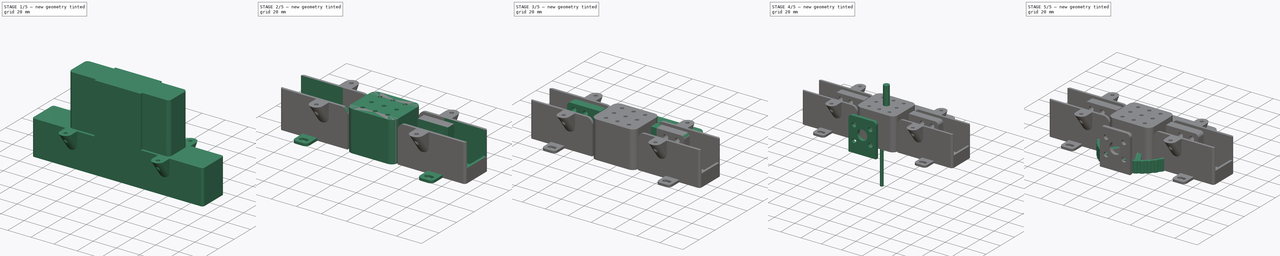
[diagram: build sequence overview — one tinted view per stage of 5, left to right]
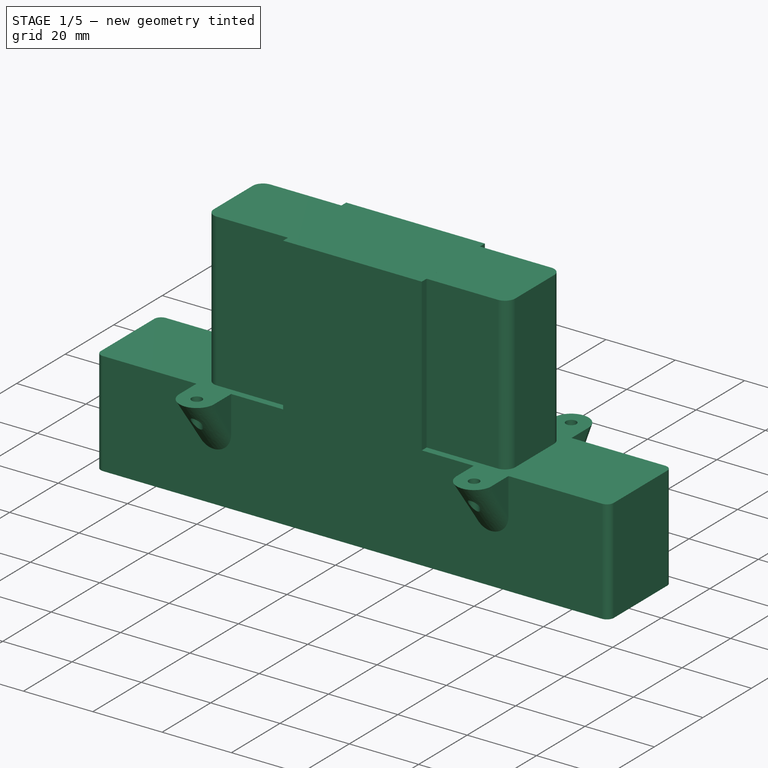
[diagram: stage 1 of 5 — iso view after this stage's code; geometry added in this stage tinted green]
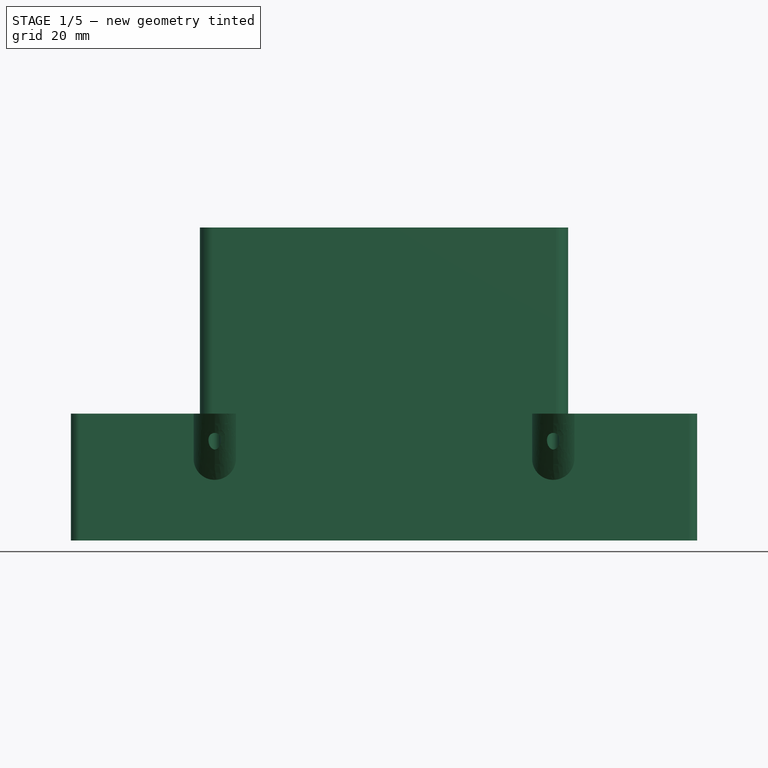
[diagram: stage 1 of 5 — front view after this stage's code; geometry added in this stage tinted green]
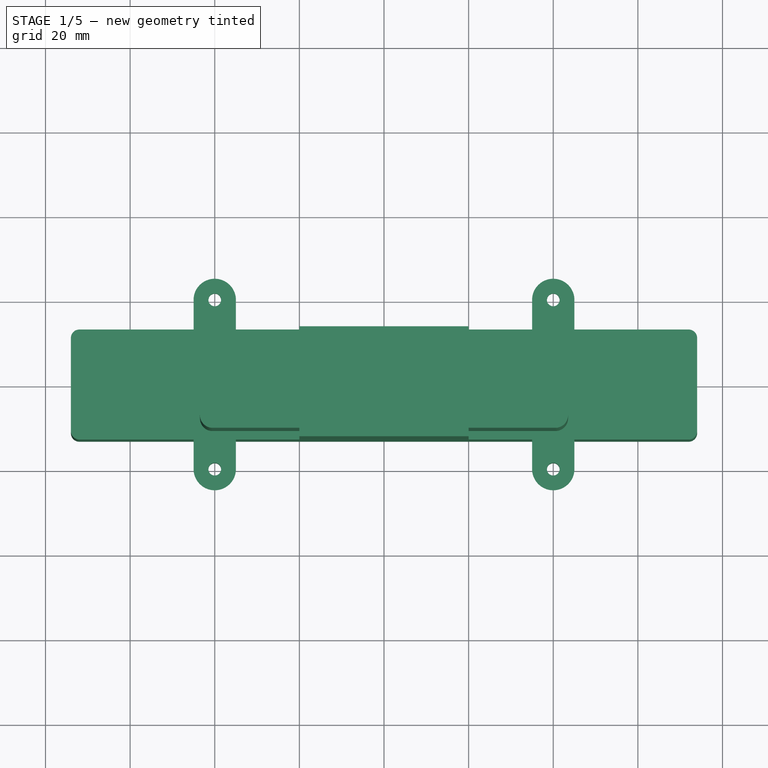
[diagram: stage 1 of 5 — top view after this stage's code; geometry added in this stage tinted green]
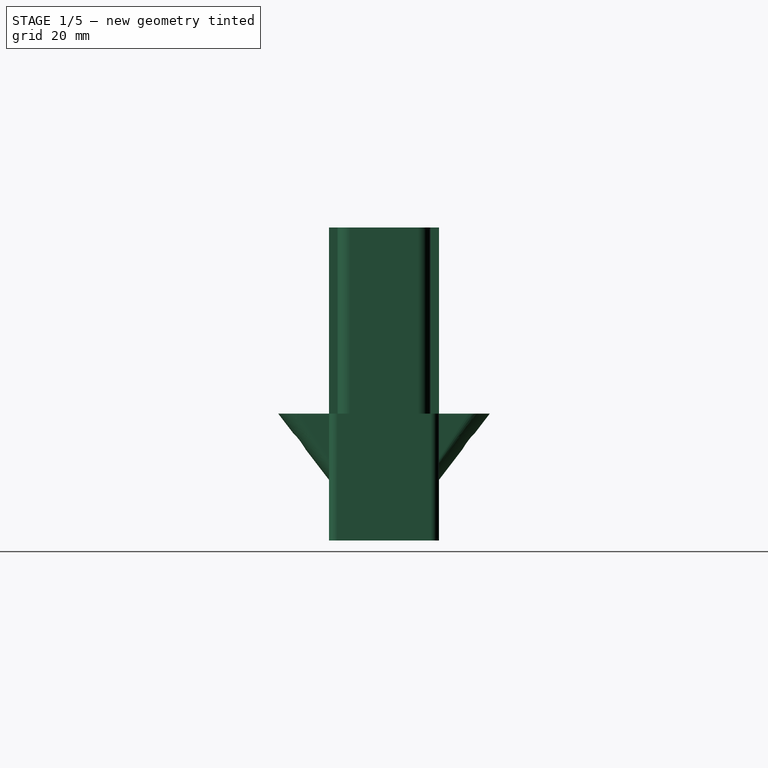
[diagram: stage 1 of 5 — right view after this stage's code; geometry added in this stage tinted green]
FCSTD DOCUMENT  (FreeCAD 0.20R29410 (Git))
Label: nema_wheel
License: All rights reserved
LicenseURL: http://en.wikipedia.org/wiki/All_rights_reserved
objects: Part::FeaturePython×16, Part::Cylinder×14, Part::MultiFuse×14, Part::Box×12, Part::Cut×9, Part::Fillet×8, Part::Mirroring×6, Surface::GeomFillSurface×5, Sketcher::SketchObject×4, Part::Feature×3, Part::Refine×2, PartDesign::Body×2, Part::Cone×1, Part::Extrusion×1, Part::Plane×1, App::DocumentObjectGroup×1, PartDesign::Pad×1, PartDesign::FeatureBase×1, Spreadsheet::Sheet×1, Part::Compound×1
note: 94 computed .brp shape members not serialized (recipe doc carries the construction recipe); baked Part::Feature solids carry a one-line shape summary decoded from their .brp

FEATURE [Part::Cylinder] Cylinder009  label="insert hole002"
  Angle = 360
  AttacherType = Attacher::AttachEngine3D
  FirstAngle = 0
  Height = 10
  Radius = 2.1
  SecondAngle = 0
  expr: Radius = <<p>>.insert_hole_r
FEATURE [Part::FeaturePython] Array002  label="insert hole 10x10 array"  # Draft array (typed FeaturePython)
  AlwaysSyncPlacement = false
  Angle = 360
  ArrayType = 0
  Axis = (0,0,1)
  Base = -> Cylinder009
  Center = (0,0,0)
  Count = 6
  ExpandArray = false
  Fuse = false
  IntervalAxis = (0,0,0)
  IntervalX = (10,0,0)
  IntervalY = (0,10,0)
  IntervalZ = (0,0,100)
  NumberCircles = 3
  NumberPolar = 5
  NumberX = 3
  NumberY = 2
  NumberZ = 1
  PlacementList = 6 placements: [(0,0,0),(0,10,0),(10,0,0),(10,10,0),(20,0,0),(20,10,0)]
  RadialDistance = 50
  ScaleList = (6) [(1,1,1),(1,1,1),(1,1,1),(1,1,1),(1,1,1),(1,1,1)]
  Symmetry = 1
  TangentialDistance = 25
FEATURE [PartDesign::FeatureBase] Clone
  BaseFeature = -> Array002
FEATURE [Part::Box] Box009  label="battery holder cube"
  AttacherType = Attacher::AttachEngine3D
  Height = 30
  Length = 148
  Placement = pos=(-74,-13,0) rot=(0,0,1;0rad)
  Width = 26
  expr: .Placement.Base.x = -Length / 2
  expr: .Placement.Base.y = -Width / 2
  expr: Length = <<p>>.battery_length + 2 * <<p>>.battery_holder_wall
  expr: Width = <<p>>.battery_width + 2 * <<p>>.battery_holder_wall
FEATURE [Part::Fillet] Fillet006  label="battery holder cube fillet"
  Base = -> Box009
  Edges = 4 edges r=2: [Edge1,Edge3,Edge5,Edge7]
FEATURE [Part::Cylinder] Cylinder012  label="bolt hole"
  Angle = 360
  AttacherType = Attacher::AttachEngine3D
  FirstAngle = 0
  Height = 10
  Radius = 1.85
  SecondAngle = 0
FEATURE [Part::FeaturePython] Array006  label="battery holder bolt hole array"  # Draft array (typed FeaturePython)
  AlwaysSyncPlacement = false
  Angle = 360
  ArrayType = 0
  Axis = (0,0,1)
  Base = -> Cylinder012
  Center = (0,0,0)
  Count = 13
  ExpandArray = false
  Fuse = false
  IntervalAxis = (0,0,0)
  IntervalX = (10,0,0)
  IntervalY = (0,100,0)
  IntervalZ = (0,0,100)
  NumberCircles = 3
  NumberPolar = 5
  NumberX = 13
  NumberY = 1
  NumberZ = 1
  Placement = pos=(-60,0,0) rot=(0,0,1;0rad)
  PlacementList = 13 placements: arithmetic series from (0,0,0) step (10,0,0) to (120,0,0)
  RadialDistance = 50
  ScaleList = (13) [(1,1,1),(1,1,1),(1,1,1),(1,1,1),(1,1,1),(1,1,1),(1,1,1),(1,1,1),(1,1,1),(1,1,1),(1,1,1),(1,1,1),(1,1,1)]
  Symmetry = 1
  TangentialDistance = 25
  expr: .Placement.Base.x = -.IntervalX.x * (NumberX - 1) / 2
FEATURE [Part::Box] Box012  label="battery short extract cube"
  AttacherType = Attacher::AttachEngine3D
  Height = 74
  Length = 87
  Placement = pos=(-43.5,-11,0) rot=(0,0,1;0rad)
  Width = 22
  expr: .Placement.Base.x = -Length / 2
  expr: .Placement.Base.y = -Width / 2
  expr: Height = <<p>>.battery_height
  expr: Width = <<p>>.battery_width
FEATURE [Part::Fillet] Fillet007  label="battery short extract cube fillet"
  Base = -> Box012
  Edges = 4 edges r=3: [Edge1,Edge3,Edge5,Edge7]
FEATURE [Sketcher::SketchObject] Sketch002
  FullyConstrained = true
  sketch-geometry (4):
    g0: LineSegment StartX=-5 StartY=-7 StartZ=0 EndX=-5 EndY=-9e-16 EndZ=0
    g1: LineSegment StartX=5 StartY=-7 StartZ=0 EndX=5 EndY=0 EndZ=0
    g2: ArcOfCircle CenterX=0 CenterY=0 CenterZ=0 NormalX=0 NormalY=0 NormalZ=1 AngleXU=0 Radius=5 StartAngle=0 EndAngle=3.14159
    g3: LineSegment StartX=-5 StartY=-7 StartZ=0 EndX=5 EndY=-7 EndZ=0
  constraints (9):
    c: Vertical(g1)
    c: Symmetric(g0,g1,g-2)
    c: Tangent(g2,g0) = 1.5708
    c: Tangent(g2,g1) = -1.5708
    c: Coincident(g3,g0)
    c: Coincident(g3,g1)
    c: Radius(g2) = 5
    c: DistanceY(g0,g0) = 7
    c: Coincident(g2,g-1)
FEATURE [Sketcher::SketchObject] Sketch003
  FullyConstrained = false
  Placement = pos=(0,-7,0) rot=(1,0,0;1.5708rad)
  sketch-geometry (4):
    g0: LineSegment StartX=-5 StartY=0 StartZ=0 EndX=-5 EndY=-10.6504 EndZ=0
    g1: LineSegment StartX=5 StartY=0 StartZ=0 EndX=5 EndY=-10.6504 EndZ=0
    g2: ArcOfCircle CenterX=2e-16 CenterY=-10.6504 CenterZ=0 NormalX=0 NormalY=0 NormalZ=1 AngleXU=0 Radius=5 StartAngle=3.14159 EndAngle=6.28319
    g3: LineSegment StartX=-5 StartY=0 StartZ=0 EndX=5 EndY=0 EndZ=0
  constraints (9):
    c: PointOnObject(g0,g-1)
    c: Vertical(g0)
    c: Vertical(g1)
    c: Tangent(g2,g0) = -1.5708
    c: Tangent(g2,g1) = 1.5708
    c: Symmetric(g0,g1,g-2)
    c: Radius(g2) = 5
    c: Coincident(g3,g0)
    c: Coincident(g3,g1)
FEATURE [Surface::GeomFillSurface] Surface
  BoundaryList = -> [Sketch002,Sketch003]
  FillType = 0
FEATURE [Surface::GeomFillSurface] Surface001
  BoundaryList = -> [Sketch003,Sketch002]
  FillType = 0
FEATURE [Surface::GeomFillSurface] Surface002
  BoundaryList = -> [Surface,Sketch002,Surface001,Sketch003]
  FillType = 0
FEATURE [Surface::GeomFillSurface] Surface003
  BoundaryList = -> [Surface,Surface001,Surface002]
  FillType = 0
FEATURE [Surface::GeomFillSurface] Surface004
  BoundaryList = -> [Sketch002]
  FillType = 0
FEATURE [Part::Cylinder] Cylinder013  label="bolt screw hole"
  Angle = 360
  AttacherType = Attacher::AttachEngine3D
  FirstAngle = 0
  Height = 20
  Placement = pos=(0,0,-20) rot=(0,0,1;0rad)
  Radius = 1.5
  SecondAngle = 0
  expr: .Placement.Base.z = -Height
FEATURE [Part::Compound] Compound
  Links = -> [Surface,Surface001,Surface002,Surface003,Surface004]
FEATURE [Part::Refine] Compound001
  Source = -> Compound
FEATURE [Part::Feature] Compound001_solid001  label="Compound001 (Solid)001"
  shape: bbox 10 x 12.95 x 16.61 mm, 5 faces (baked)
FEATURE [Part::Cut] Cut004006  label="ear cut"
  Base = -> Compound001_solid001
  Placement = pos=(-40,20,0) rot=(0,0,1;0rad)
  Tool = -> Cylinder013
FEATURE [Part::FeaturePython] Array007  label="ear array"  # Draft array (typed FeaturePython)
  AlwaysSyncPlacement = false
  Angle = 360
  ArrayType = 0
  Axis = (0,0,1)
  Base = -> Cut004006
  Center = (0,0,0)
  Count = 2
  ExpandArray = false
  Fuse = false
  IntervalAxis = (0,0,0)
  IntervalX = (80,0,0)
  IntervalY = (0,100,0)
  IntervalZ = (0,0,100)
  NumberCircles = 3
  NumberPolar = 5
  NumberX = 2
  NumberY = 1
  NumberZ = 1
  Placement = pos=(0,0,30) rot=(0,0,1;0rad)
  PlacementList = 2 placements: [(-40,20,0),(40,20,0)]
  RadialDistance = 50
  ScaleList = (2) [(1,1,1),(1,1,1)]
  Symmetry = 1
  TangentialDistance = 25
  expr: .Placement.Base.z = <<battery holder cube>>.Height
FEATURE [Part::Mirroring] Part__Mirroring004  label="ear array (Mirror #5)"
  Base = (0,0,0)
  Normal = (0,1,0)
  Source = -> Array007
FEATURE [Part::MultiFuse] Fusion013  label="battery holder fusion"
  Shapes = -> [Part__Mirroring004,Array007,Fillet006]
FEATURE [Part::Box] Box013  label="battery extract cut cube"
  AttacherType = Attacher::AttachEngine3D
  Height = 74
  Length = 40
  Placement = pos=(-20,-13,0) rot=(0,0,1;0rad)
  Width = 26
  expr: .Placement.Base.x = -Length / 2
  expr: .Placement.Base.y = -Width / 2
  expr: Height = <<p>>.battery_height
  expr: Width = <<p>>.battery_width + 2 * <<p>>.battery_holder_wall
FEATURE [Part::Mirroring] Part__Mirroring005  label="holdert hole clone (Mirror #6)"
  Base = (0,0,0)
  Normal = (1,0,0)
  Source = -> Body
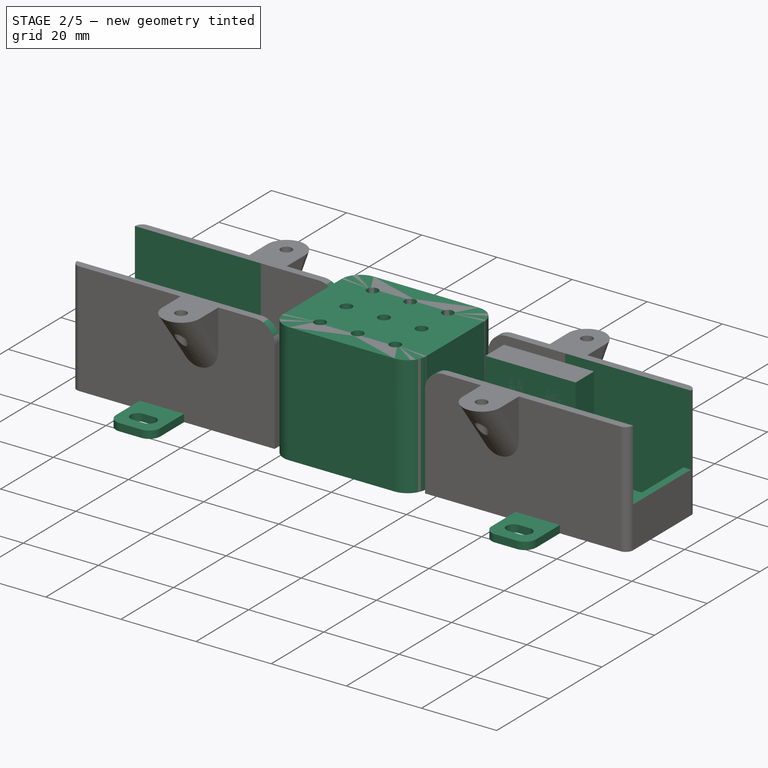
[diagram: stage 2 of 5 — iso view after this stage's code; geometry added in this stage tinted green]
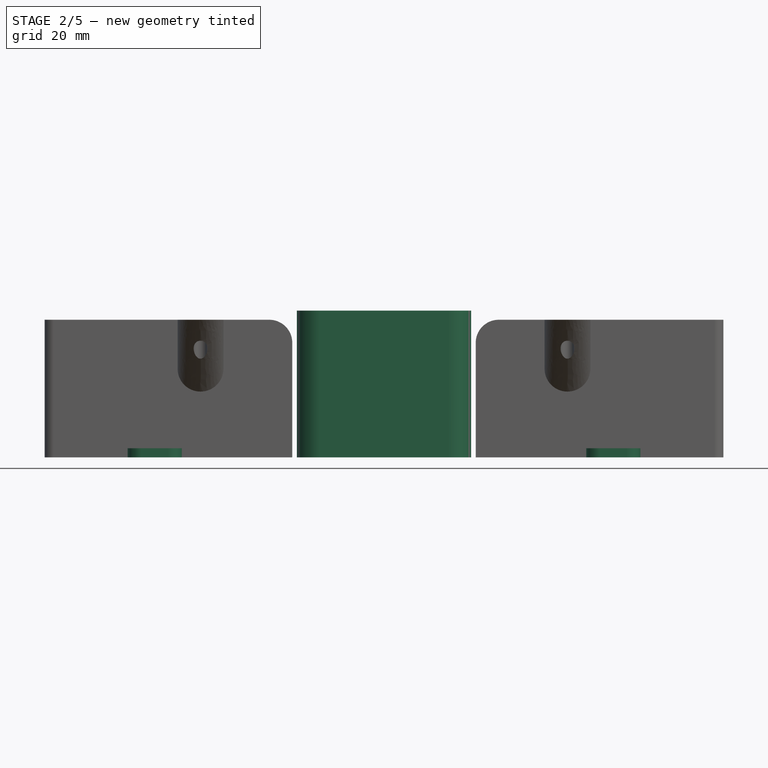
[diagram: stage 2 of 5 — front view after this stage's code; geometry added in this stage tinted green]
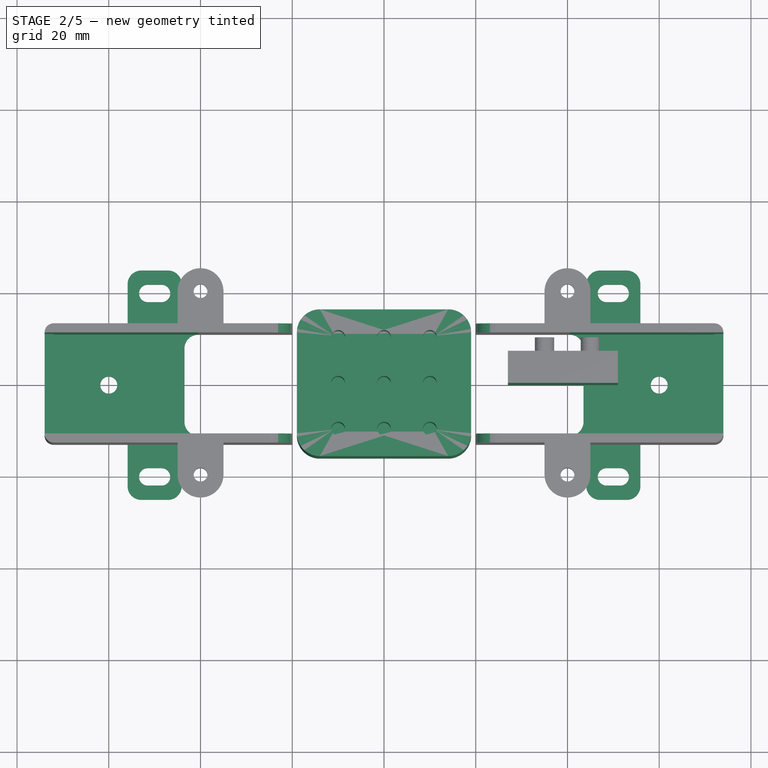
[diagram: stage 2 of 5 — top view after this stage's code; geometry added in this stage tinted green]
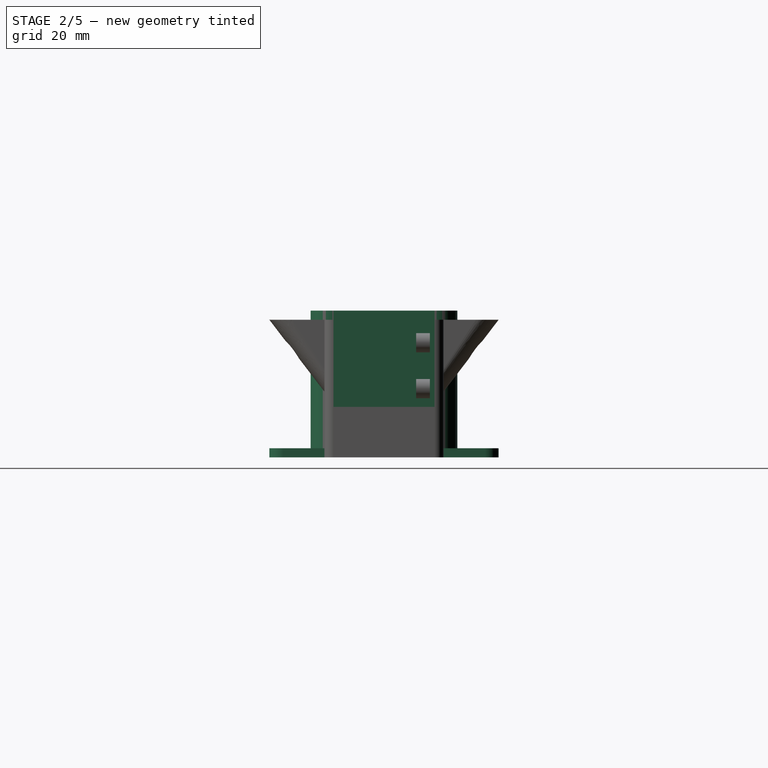
[diagram: stage 2 of 5 — right view after this stage's code; geometry added in this stage tinted green]
FEATURE [Part::Feature] Pocket003Body001  label="StepperBody"
  Placement = pos=(0,0,5) rot=(0,0,1;0rad)
  shape: bbox 46.6 x 42.3 x 53.35 mm, 70 faces (baked)
FEATURE [Part::Box] Box003  label="stepper wall"
  AttacherType = Attacher::AttachEngine3D
  Height = 5
  Length = 54
  Placement = pos=(-27,15,0) rot=(0,0,1;0rad)
  Width = 46
  expr: .Placement.Base.x = -Length / 2
FEATURE [App::DocumentObjectGroup] GrExplode_Slice  label="Exploded Slice"
  Group = -> [Slice_child0,Array]
FEATURE [Part::Box] Box004  label="stepper top wall"
  AttacherType = Attacher::AttachEngine3D
  Height = 30
  Length = 24
  Placement = pos=(27,0,0) rot=(0,0,1;0rad)
  Width = 7
  expr: .Placement.Base.x = <<stepper wall>>.Length / 2
FEATURE [Spreadsheet::Sheet] Spreadsheet  label="p"
  cells = A1=stepper_wall_width; B1(stepper_wall_width)==60mm; A2=insert_hole_r; B2(insert_hole_r)==2.1mm; A3=screw_hole_r; B3(screw_hole_r)==1.5mm; A4=battery_width; B4(battery_width)==22mm; A5=battery_height; B5(battery_height)==74mm; A6=battery_length; B6(battery_length)==144mm; A7=battery_holder_wall; B7(battery_holder_wall)==2mm
FEATURE [Part::Box] Box008  label="coaster holder cube"
  AttacherType = Attacher::AttachEngine3D
  Height = 32
  Length = 38
  Placement = pos=(-19,-16,0) rot=(0,0,1;0rad)
  Width = 32
  expr: .Placement.Base.x = -Length / 2
  expr: .Placement.Base.y = -Width / 2
FEATURE [Part::Cylinder] Cylinder010  label="coaster insert hole"
  Angle = 360
  AttacherType = Attacher::AttachEngine3D
  FirstAngle = 0
  Height = 16
  Radius = 2.1
  SecondAngle = 0
  expr: Height = <<coaster holder cube>>.Height / 2
  expr: Radius = <<p>>.insert_hole_r
FEATURE [Part::Fillet] Fillet005  label="coaster holder cube fillet"
  Base = -> Box008
  Edges = 4 edges r=5: [Edge1,Edge3,Edge5,Edge7]
FEATURE [Part::Cylinder] Cylinder011  label="coaster screw hole"
  Angle = 360
  AttacherType = Attacher::AttachEngine3D
  FirstAngle = 0
  Height = 27
  Radius = 1.5
  SecondAngle = 0
  expr: Height = <<coaster holder cube>>.Height - 5mm
  expr: Radius = <<p>>.screw_hole_r
FEATURE [Part::FeaturePython] Array003  label="coaster holder top hole array"  # Draft array (typed FeaturePython)
  AlwaysSyncPlacement = false
  Angle = 360
  ArrayType = 0
  Axis = (0,0,1)
  Base = -> Cylinder011
  Center = (0,0,0)
  Count = 9
  ExpandArray = false
  Fuse = false
  IntervalAxis = (0,0,0)
  IntervalX = (10,0,0)
  IntervalY = (0,10,0)
  IntervalZ = (0,0,100)
  NumberCircles = 3
  NumberPolar = 5
  NumberX = 3
  NumberY = 3
  NumberZ = 1
  Placement = pos=(-10,-10,16) rot=(0,0,1;0rad)
  PlacementList = 9 placements: [(0,0,0),(0,10,0),(0,20,0),(10,0,0),(10,10,0),(10,20,0),(20,0,0),(20,10,0),(20,20,0)]
  RadialDistance = 50
  ScaleList = (9) [(1,1,1),(1,1,1),(1,1,1),(1,1,1),(1,1,1),(1,1,1),(1,1,1),(1,1,1),(1,1,1)]
  Symmetry = 1
  TangentialDistance = 25
  expr: .Placement.Base.x = -.IntervalX.x * (NumberX - 1) / 2
  expr: .Placement.Base.y = -.IntervalY.y * (NumberY - 1) / 2
  expr: .Placement.Base.z = <<coaster holder cube>>.Height - <<coaster insert hole>>.Height
FEATURE [Part::FeaturePython] Array004  label="coaster holder bottom hole array"  # Draft array (typed FeaturePython)
  AlwaysSyncPlacement = false
  Angle = 360
  ArrayType = 0
  Axis = (0,0,1)
  Base = -> Cylinder011
  Center = (0,0,0)
  Count = 4
  ExpandArray = false
  Fuse = false
  IntervalAxis = (0,0,0)
  IntervalX = (30,0,0)
  IntervalY = (0,23.5,0)
  IntervalZ = (0,0,100)
  NumberCircles = 3
  NumberPolar = 5
  NumberX = 2
  NumberY = 2
  NumberZ = 1
  Placement = pos=(-15,-11.75,0) rot=(0,0,1;0rad)
  PlacementList = 4 placements: [(0,0,0),(0,23.5,0),(30,0,0),(30,23.5,0)]
  RadialDistance = 50
  ScaleList = (4) [(1,1,1),(1,1,1),(1,1,1),(1,1,1)]
  Symmetry = 1
  TangentialDistance = 25
  expr: .Placement.Base.x = -.IntervalX.x / 2
  expr: .Placement.Base.y = -.IntervalY.y / 2
FEATURE [Part::MultiFuse] Fusion011  label="coaster hole fusion"
  Shapes = -> [Array003,Array004]
FEATURE [Part::Cut] Cut004004  label="coaster holder cut"
  Base = -> Fillet005
  Tool = -> Fusion011
FEATURE [Part::Box] Box010  label="battery extract cube"
  AttacherType = Attacher::AttachEngine3D
  Height = 74
  Length = 144
  Placement = pos=(-72,-11,2) rot=(0,0,1;0rad)
  Width = 22
  expr: .Placement.Base.x = -Length / 2
  expr: .Placement.Base.y = -Width / 2
  expr: .Placement.Base.z = <<p>>.battery_holder_wall
  expr: Height = <<p>>.battery_height
  expr: Length = <<p>>.battery_length
  expr: Width = <<p>>.battery_width
FEATURE [Part::Box] Box011  label="battery long extract cube"
  AttacherType = Attacher::AttachEngine3D
  Height = 74
  Length = 148
  Placement = pos=(-74,-11,11) rot=(0,0,1;0rad)
  Width = 22
  expr: .Placement.Base.x = -Length / 2
  expr: .Placement.Base.y = -Width / 2
  expr: Height = <<p>>.battery_height
  expr: Length = <<p>>.battery_length + 2 * <<p>>.battery_holder_wall
  expr: Width = <<p>>.battery_width
FEATURE [Part::Feature] Cut002001  label="attach plane y dir"
  Placement = pos=(-55.9,-25,0) rot=(0,0,1;0rad)
  shape: bbox 11.8 x 50 x 2 mm, 20 faces (baked)
FEATURE [Part::FeaturePython] Array005  label="attach plane y dir array"  # Draft array (typed FeaturePython)
  AlwaysSyncPlacement = false
  Angle = 360
  ArrayType = 0
  Axis = (0,0,1)
  Base = -> Cut002001
  Center = (0,0,0)
  Count = 2
  ExpandArray = false
  Fuse = false
  IntervalAxis = (0,0,0)
  IntervalX = (100,0,0)
  IntervalY = (0,100,0)
  IntervalZ = (0,0,100)
  NumberCircles = 3
  NumberPolar = 5
  NumberX = 2
  NumberY = 1
  NumberZ = 1
  PlacementList = 2 placements: [(-55.9,-25,0),(44.1,-25,0)]
  RadialDistance = 50
  ScaleList = (2) [(1,1,1),(1,1,1)]
  Symmetry = 1
  TangentialDistance = 25
FEATURE [Part::MultiFuse] Fusion012  label="battery extraction fusion"
  Shapes = -> [Box010,Box011,Array006,Fillet007,Box013]
FEATURE [Part::Cut] Cut004005  label="battery holder cut"
  Base = -> Fusion013
  Tool = -> Fusion012
FEATURE [Part::Fillet] Fillet008  label="buttery holder filler"
  Base = -> Cut004005
  Edges = 4 edges r=5: [Edge26,Edge47,Edge112,Edge162]
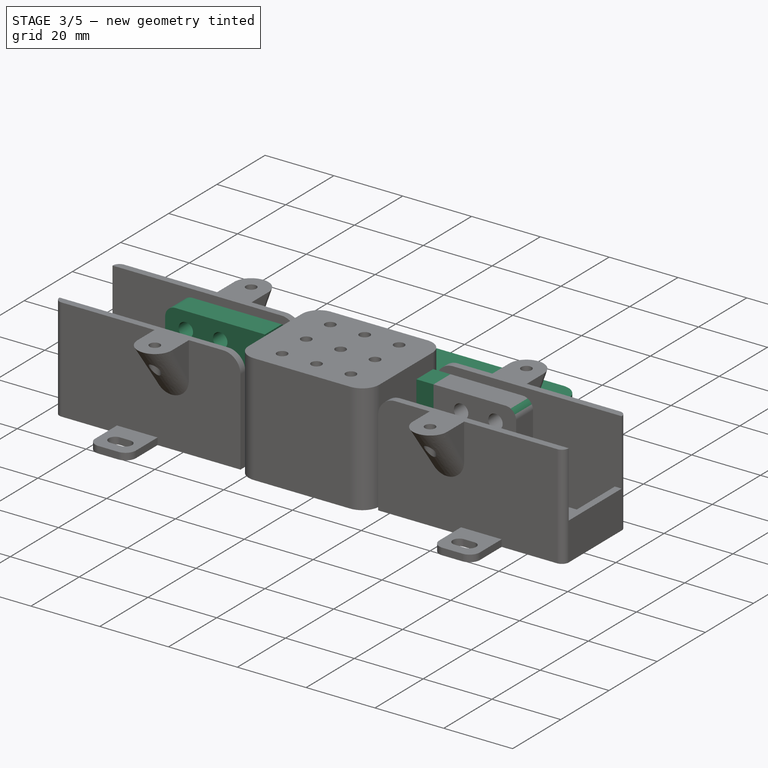
[diagram: stage 3 of 5 — iso view after this stage's code; geometry added in this stage tinted green]
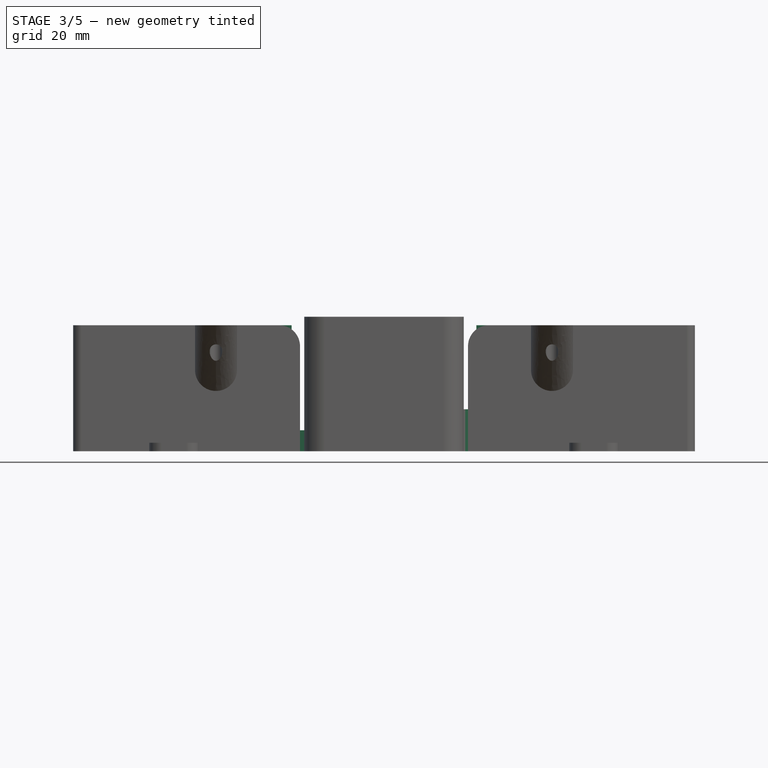
[diagram: stage 3 of 5 — front view after this stage's code; geometry added in this stage tinted green]
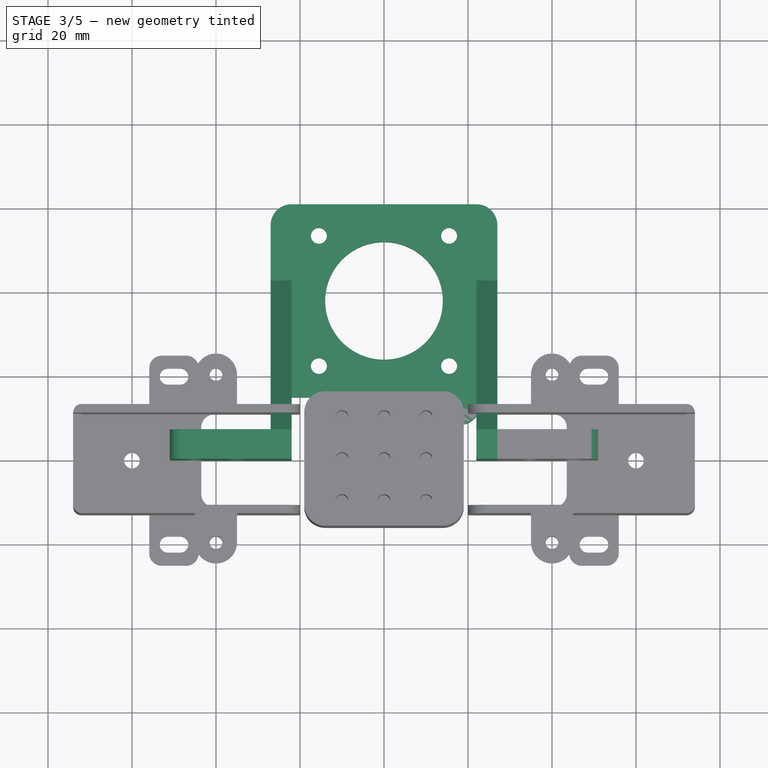
[diagram: stage 3 of 5 — top view after this stage's code; geometry added in this stage tinted green]
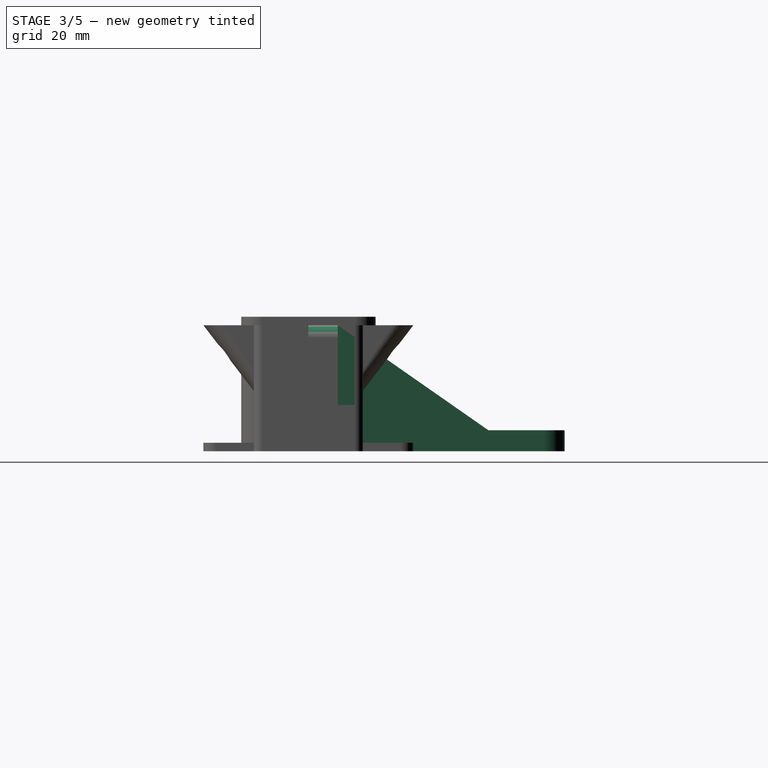
[diagram: stage 3 of 5 — right view after this stage's code; geometry added in this stage tinted green]
FEATURE [Part::Fillet] Fillet001  label="stepper wall fillet"
  Base = -> Box003
  Edges = 2 edges r=5: [Edge3,Edge7]
FEATURE [Part::Cylinder] Cylinder005  label="stepper center extract"
  Angle = 360
  AttacherType = Attacher::AttachEngine3D
  FirstAngle = 0
  Height = 20
  Placement = pos=(0,38,0) rot=(0,0,1;0rad)
  Radius = 14
  SecondAngle = 0
  expr: .Placement.Base.y = <<p>>.stepper_wall_width - 22mm
FEATURE [Part::Cylinder] Cylinder006  label="stepper bolt hole"
  Angle = 360
  AttacherType = Attacher::AttachEngine3D
  FirstAngle = 0
  Height = 10
  Placement = pos=(0,38,0) rot=(0,0,1;0rad)
  Radius = 1.9
  SecondAngle = 0
  expr: .Placement.Base.y = <<p>>.stepper_wall_width - 22mm
FEATURE [Part::FeaturePython] Array  label="stepper bolt hole array"  # Draft array (typed FeaturePython)
  AlwaysSyncPlacement = false
  Angle = 360
  ArrayType = 0
  Axis = (0,0,1)
  Base = -> Cylinder006
  Center = (0,0,0)
  Count = 4
  ExpandArray = false
  Fuse = false
  IntervalAxis = (0,0,0)
  IntervalX = (31,0,0)
  IntervalY = (0,31,0)
  IntervalZ = (0,0,100)
  NumberCircles = 3
  NumberPolar = 5
  NumberX = 2
  NumberY = 2
  NumberZ = 1
  Placement = pos=(-15.5,-15.5,0) rot=(0,0,1;0rad)
  PlacementList = 4 placements: [(0,38,0),(0,69,0),(31,38,0),(31,69,0)]
  RadialDistance = 50
  ScaleList = (4) [(1,1,1),(1,1,1),(1,1,1),(1,1,1)]
  Symmetry = 1
  TangentialDistance = 25
  expr: .Placement.Base.x = -.IntervalX.x / 2
  expr: .Placement.Base.y = -.IntervalY.y / 2
FEATURE [Part::Cylinder] Cylinder007  label="insert hole001"
  Angle = 360
  AttacherType = Attacher::AttachEngine3D
  FirstAngle = 0
  Height = 10
  Radius = 2.1
  SecondAngle = 0
  expr: Radius = <<p>>.insert_hole_r
FEATURE [Part::FeaturePython] Array001  label="insert hole array"  # Draft array (typed FeaturePython)
  AlwaysSyncPlacement = false
  Angle = 360
  ArrayType = 0
  Axis = (0,0,1)
  Base = -> Cylinder007
  Center = (0,0,0)
  Count = 4
  ExpandArray = false
  Fuse = false
  IntervalAxis = (0,0,0)
  IntervalX = (14,0,0)
  IntervalY = (0,16,0)
  IntervalZ = (0,0,100)
  NumberCircles = 3
  NumberPolar = 5
  NumberX = 2
  NumberY = 2
  NumberZ = 1
  Placement = pos=(11,5.5,0) rot=(0,0,1;0rad)
  PlacementList = 4 placements: [(0,0,0),(0,16,0),(14,0,0),(14,16,0)]
  RadialDistance = 50
  ScaleList = (4) [(1,1,1),(1,1,1),(1,1,1),(1,1,1)]
  Symmetry = 1
  TangentialDistance = 25
  expr: .Placement.Base.y = (<<motor holder box>>.Width - .IntervalY.y) / 2
FEATURE [Part::Box] Box006  label="motor holder box"
  AttacherType = Attacher::AttachEngine3D
  Height = 3
  Length = 33
  Width = 27
FEATURE [Part::Cylinder] Cylinder008  label="motor holder central hole"
  Angle = 360
  AttacherType = Attacher::AttachEngine3D
  FirstAngle = 0
  Height = 10
  Placement = pos=(18,13.5,0) rot=(0,0,1;0rad)
  Radius = 5
  SecondAngle = 0
  expr: .Placement.Base.x = <<insert hole array>>.Placement.Base.x + <<insert hole array>>.IntervalX.x / 2
  expr: .Placement.Base.y = <<motor holder box>>.Width / 2
FEATURE [Part::Refine] Cut004001  label="motor holder cut001"
  Placement = pos=(0,2,0) rot=(0,0,1;0rad)
  Source = -> Cut004
FEATURE [Sketcher::SketchObject] Sketch
  FullyConstrained = true
  MapMode = 5
  Placement = pos=(0,0,0) rot=(0.57735,0.57735,0.57735;2.0944rad)
  expr: Constraints[10] = <<stepper top wall>>.Width
  expr: Constraints[2] = <<stepper top wall>>.Height
  expr: Constraints[3] = <<p>>.stepper_wall_width - 10mm
  sketch-geometry (4):
    g0: LineSegment StartX=50 StartY=0 StartZ=0 EndX=0 EndY=0 EndZ=0
    g1: LineSegment StartX=0 StartY=0 StartZ=0 EndX=0 EndY=30 EndZ=0
    g2: LineSegment StartX=0 StartY=30 StartZ=0 EndX=7 EndY=30 EndZ=0
    g3: LineSegment StartX=7 StartY=30 StartZ=0 EndX=50 EndY=0 EndZ=0
  constraints (11):
    c: PointOnObject(g1,g-2)
    c: PointOnObject(g0,g-1)
    c: DistanceY(g-1,g1) = 30
    c: DistanceX(g-1,g0) = 50
    c: Coincident(g1,g-1)
    c: Coincident(g0,g1)
    c: Coincident(g2,g1)
    c: Horizontal(g2)
    c: Coincident(g3,g2)
    c: Coincident(g3,g0)
    c: DistanceX(g2,g2) = 7
FEATURE [PartDesign::Pad] Pad
  Direction = (1,0,0)
  Length = 5
  Length2 = 100
  Placement = pos=(0,0,0) rot=(0.57735,0.57735,0.57735;2.0944rad)
  Profile = -> Sketch
  Reversed = true
  Type = 0
FEATURE [PartDesign::Body] Body001  label="side body"
  Group = -> [Sketch,Pad]
  Origin = -> Origin001
  Placement = pos=(27,0,0) rot=(0,0,1;0rad)
  Tip = -> Pad
  expr: .Placement.Base.x = <<stepper wall>>.Length / 2
FEATURE [Part::Mirroring] Part__Mirroring002  label="side body (Mirror #3)"
  Base = (0,0,0)
  Normal = (1,0,0)
  Source = -> Body001
FEATURE [Part::MultiFuse] Fusion009  label="side body fusion"
  Shapes = -> [Part__Mirroring002,Body001]
FEATURE [PartDesign::Body] Body  label="holdert hole clone"
  BaseFeature = -> Array002
  Group = -> [Clone]
  Origin = -> Origin
  Placement = pos=(-45,0,5) rot=(0.57735,0.57735,0.57735;4.18879rad)
  Tip = -> Clone
FEATURE [Part::Fillet] Fillet004  label="stepper top wall fillet"
  Base = -> Box004
  Edges = 2 edges r=3: [Edge6,Edge8]
FEATURE [Part::Mirroring] Part__Mirroring003  label="stepper top wall fillet (Mirror #4)"
  Base = (0,0,0)
  Normal = (1,0,0)
  Source = -> Fillet004
FEATURE [Part::MultiFuse] Fusion007  label="stepper body fusion"
  Shapes = -> [Fillet001,Fillet004,Part__Mirroring003]
FEATURE [Part::MultiFuse] Fusion010  label="stepper body side fusion"
  Shapes = -> [Fusion007,Fusion009]
FEATURE [Part::MultiFuse] Fusion006  label="stepper wall extract fusion"
  Shapes = -> [Cylinder005,Array,Part__Mirroring005,Body]
FEATURE [Part::Cut] Cut004002  label="stepper holder cut"
  Base = -> Fusion010
  Tool = -> Fusion006
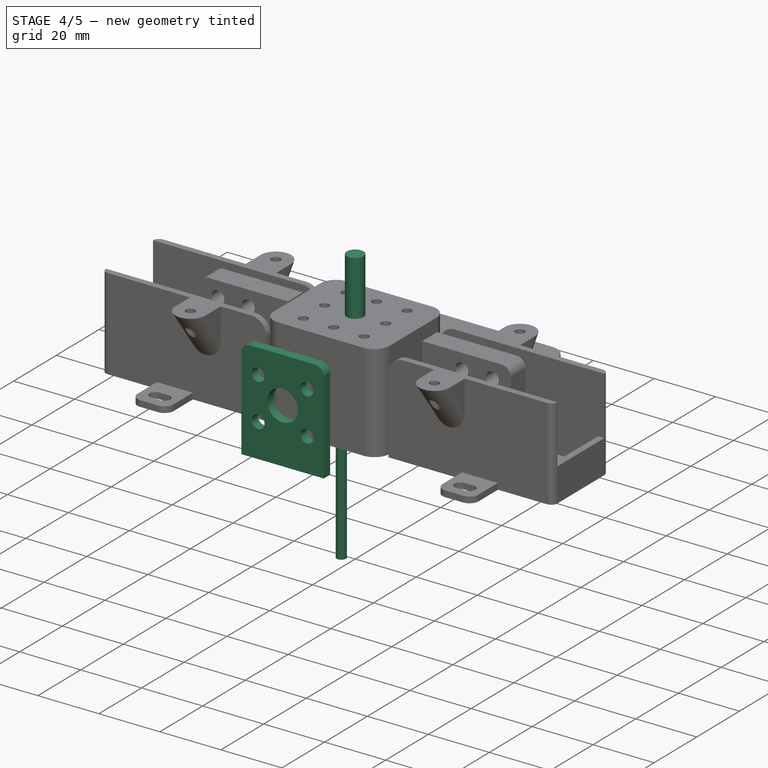
[diagram: stage 4 of 5 — iso view after this stage's code; geometry added in this stage tinted green]
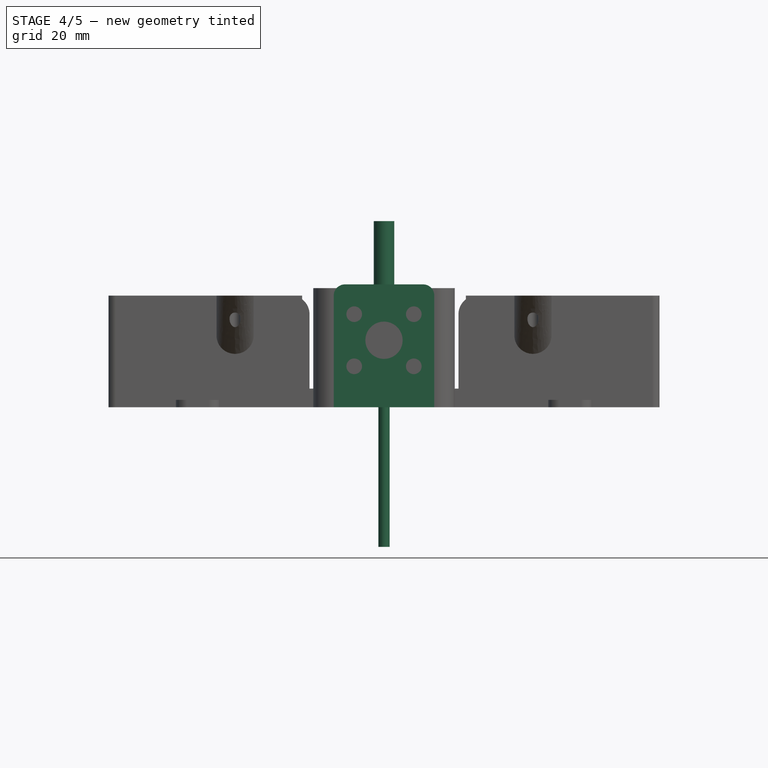
[diagram: stage 4 of 5 — front view after this stage's code; geometry added in this stage tinted green]
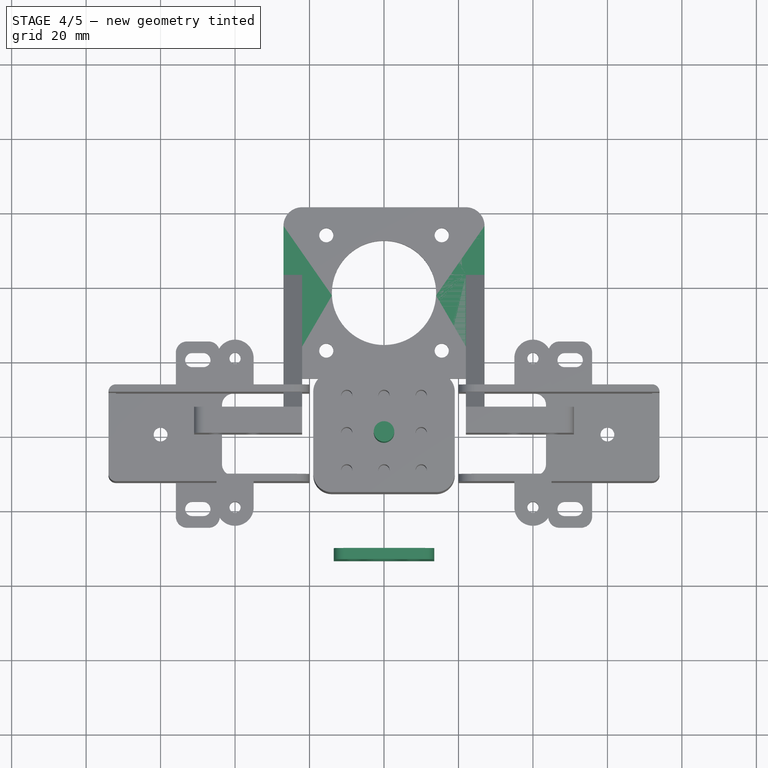
[diagram: stage 4 of 5 — top view after this stage's code; geometry added in this stage tinted green]
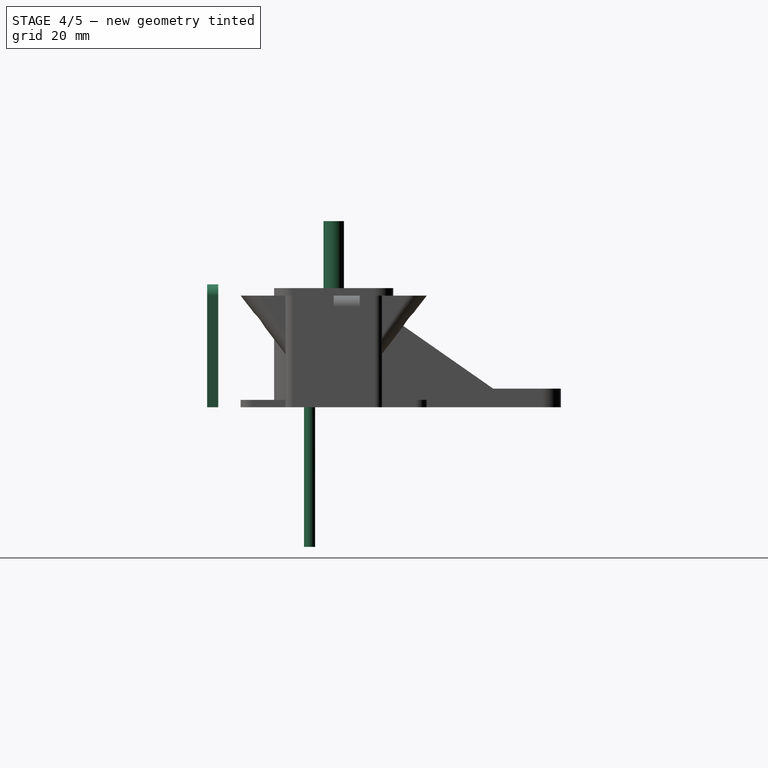
[diagram: stage 4 of 5 — right view after this stage's code; geometry added in this stage tinted green]
FEATURE [Part::Cylinder] Cylinder  label="hole 5mm"
  Angle = 360
  AttacherType = Attacher::AttachEngine3D
  FirstAngle = 0
  Height = 50
  Radius = 2.75
  SecondAngle = 0
FEATURE [Part::Cylinder] Cylinder001  label="inner cylinder"
  Angle = 360
  AttacherType = Attacher::AttachEngine3D
  FirstAngle = 0
  Height = 16
  Radius = 11
  SecondAngle = 0
FEATURE [Part::Cone] Cone  label="hole cone"
  Angle = 360
  AttacherType = Attacher::AttachEngine3D
  Height = 2
  Radius1 = 3.75
  Radius2 = 2.75
  expr: Radius1 = <<hole 5mm>>.Radius + 1mm
  expr: Radius2 = <<hole 5mm>>.Radius
FEATURE [Part::Cylinder] Cylinder002  label="insert hole"
  Angle = 360
  AttacherType = Attacher::AttachEngine3D
  FirstAngle = 0
  Height = 50
  Radius = 1.8
  SecondAngle = 0
FEATURE [Part::Cylinder] Cylinder003  label="insert outer hole"
  Angle = 360
  AttacherType = Attacher::AttachEngine3D
  FirstAngle = 0
  Height = 25
  Radius = 1.8
  SecondAngle = 0
  expr: Height = <<insert hole>>.Height / 2
FEATURE [Part::MultiFuse] Fusion001  label="insert hole fusion"
  Placement = pos=(0,-25,12.5) rot=(-1,0,0;1.5708rad)
  Shapes = -> [Cylinder002,Cylinder003]
  expr: .Placement.Base.y = -<<insert hole>>.Height / 2
  expr: .Placement.Base.z = <<inner cylinder>>.Height - 3.5mm
FEATURE [Part::Box] Box002  label="nut extract"
  AttacherType = Attacher::AttachEngine3D
  Height = 10
  Length = 6.5
  Placement = pos=(-3.25,-1.75,-5) rot=(0,0,1;0rad)
  Width = 3.5
  expr: .Placement.Base.x = -Length / 2
  expr: .Placement.Base.y = -Width / 2
  expr: .Placement.Base.z = -Height / 2
FEATURE [Part::Plane] Plane001  label="test cut plane"
  AttacherType = Attacher::AttachEngine3D
  Length = 50
  Placement = pos=(-25,-25,6) rot=(0,0,1;0rad)
  Width = 50
  expr: .Placement.Base.x = -Length / 2
  expr: .Placement.Base.y = -Width / 2
FEATURE [Part::Mirroring] Part__Mirroring001  label="hole cone (Mirror #2)"
  Base = (0,0,8)
  Normal = (0,0,1)
  Source = -> Cone
  expr: .Base.z = <<inner cylinder>>.Height / 2
FEATURE [Part::MultiFuse] Fusion  label="hole fusion"
  Shapes = -> [Cylinder,Cone,Part__Mirroring001]
FEATURE [Part::Cylinder] Cylinder004  label="pull out hole"
  Angle = 360
  AttacherType = Attacher::AttachEngine3D
  FirstAngle = 0
  Height = 50
  Placement = pos=(0,0,-50) rot=(0,0,1;0rad)
  Radius = 1.5
  SecondAngle = 0
  expr: .Placement.Base.z = -Height
FEATURE [Part::MultiFuse] Fusion005  label="nut extract fusion"
  Placement = pos=(0,6.5,12.5) rot=(0,0,1;0rad)
  Shapes = -> [Box002,Cylinder004]
  expr: .Placement.Base.y = <<hole 5mm>>.Radius + 2mm + <<nut extract>>.Width / 2
  expr: .Placement.Base.z = <<insert hole fusion>>.Placement.Base.z
FEATURE [Part::Mirroring] Part__Mirroring  label="nut extract fusion (Mirror #1)"
  Base = (0,0,0)
  Normal = (0,1,0)
  Source = -> Fusion005
FEATURE [Part::Fillet] Fillet002  label="motor holder box fillet"
  Base = -> Box006
  Edges = 2 edges r=3: [Edge5,Edge7]
FEATURE [Part::MultiFuse] Fusion008  label="hole extract"
  Shapes = -> [Array001,Cylinder008]
FEATURE [Part::Cut] Cut004  label="motor holder cut"
  Base = -> Fillet002
  Placement = pos=(-13.5,-34,-1.8e-14) rot=(0.57735,0.57735,0.57735;4.18879rad)
  Tool = -> Fusion008
FEATURE [Part::Cut] Cut003  label="stepper wall cut"
  Base = -> Fusion007
  Tool = -> Fusion006
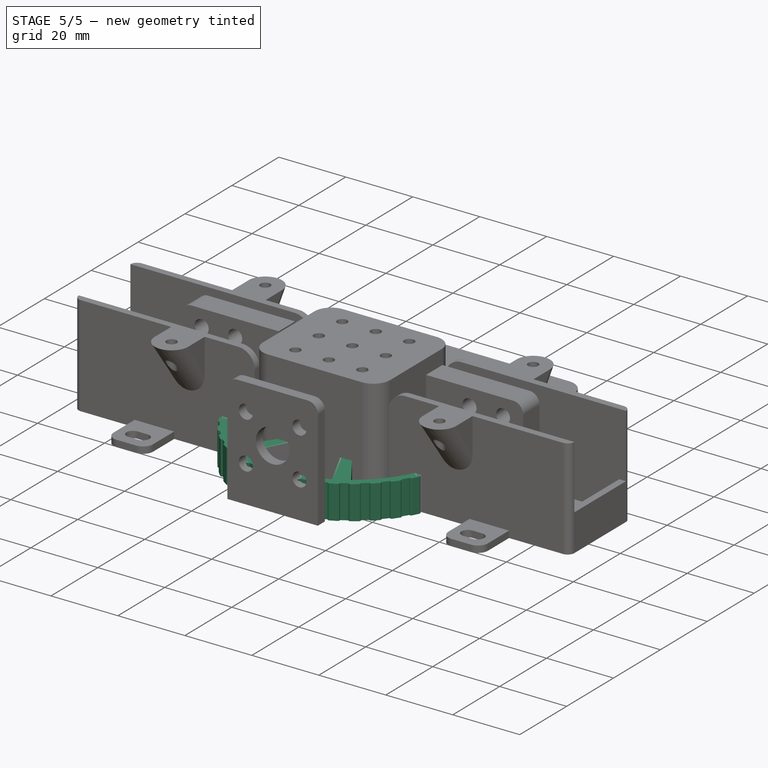
[diagram: stage 5 of 5 — iso view after this stage's code; geometry added in this stage tinted green]
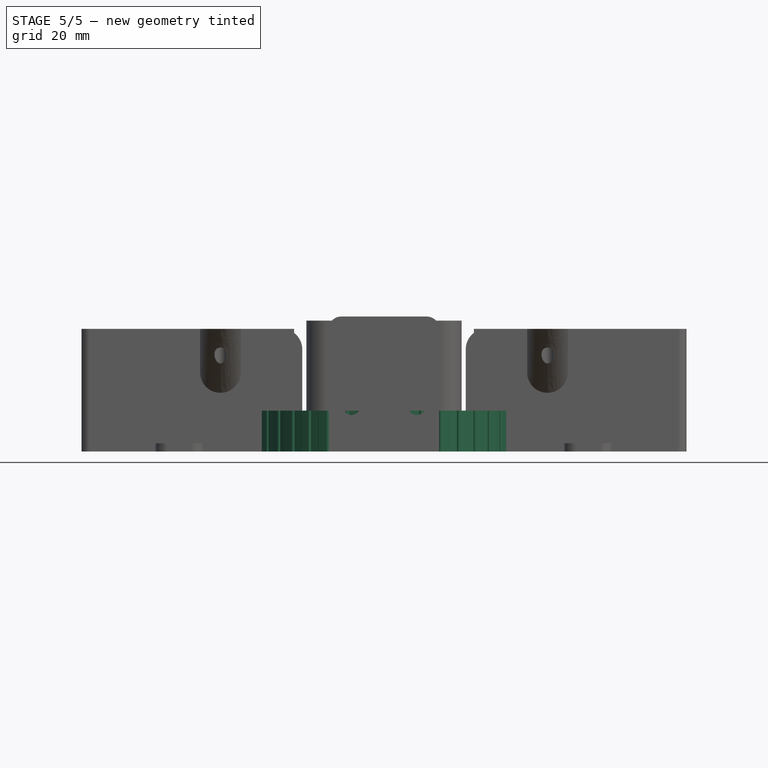
[diagram: stage 5 of 5 — front view after this stage's code; geometry added in this stage tinted green]
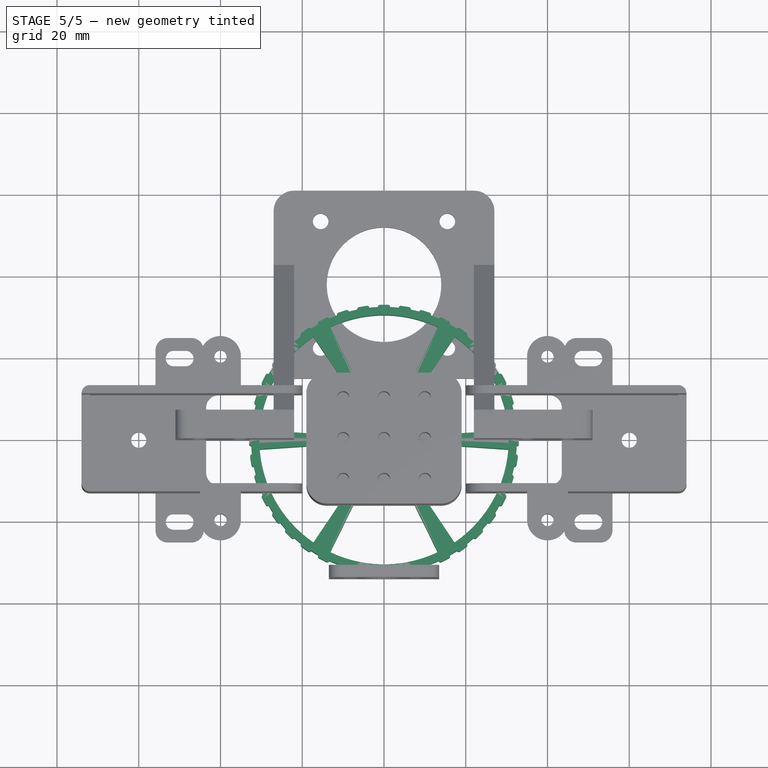
[diagram: stage 5 of 5 — top view after this stage's code; geometry added in this stage tinted green]
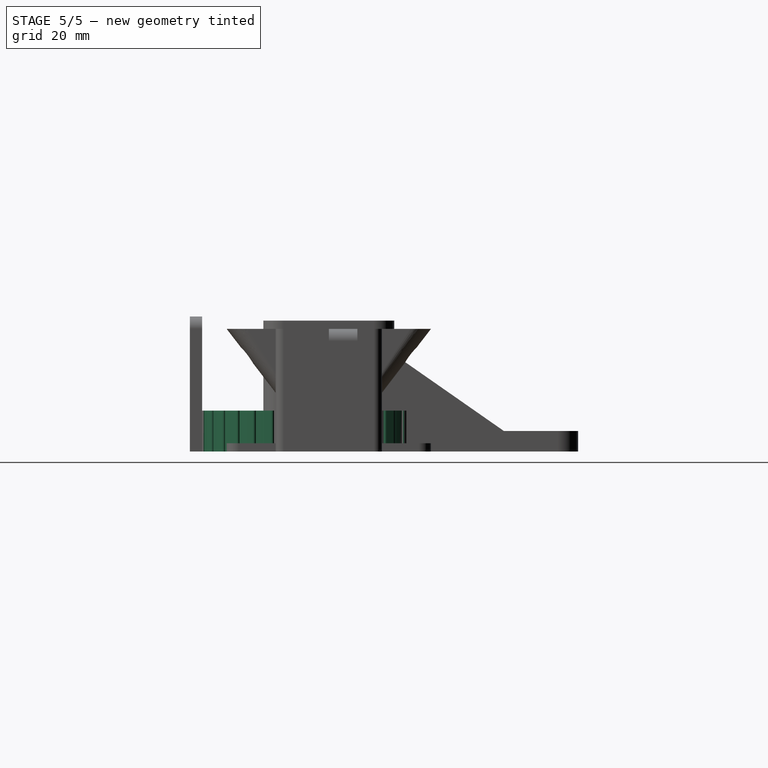
[diagram: stage 5 of 5 — right view after this stage's code; geometry added in this stage tinted green]
FEATURE [Part::Box] Box  label="cut cube"
  AttacherType = Attacher::AttachEngine3D
  Height = 50
  Length = 10
  Placement = pos=(-5,2,0) rot=(0,0,1;0rad)
  Width = 10
  expr: .Placement.Base.x = -Length / 2
  expr: Height = <<hole 5mm>>.Height
FEATURE [Part::FeaturePython] Tube  label="outer tube"  # WARN: FeaturePython — macro-defined, semantics opaque (R4)
  AttacherType = Attacher::AttachEngine3D
  Height = 10
  InnerRadius = 30.5
  OuterRadius = 32.5
FEATURE [Part::FeaturePython] PolarArray  # WARN: FeaturePython — macro-defined, semantics opaque (R4)
  Alignment = 0
  AttacherType = Attacher::AttachEngine3D
  CellStart = A1
  Count = 40
  DistributionLaw = 0
  EndInclusive = false
  ExposePlacement = false
  FlipX = false
  FlipZ = false
  GeneratorMode = 0
  MarkerShape = 1
  MarkerSize = 0
  NumElements = 40
  OrientMode = 2
  Radius = 32.5
  Reverse = false
  SpanEnd = 360
  SpanStart = 0
  Step = 9
  Support = -> [Tube]
  Type = lattice2PolarArray2.PolarArray
  UseArcRadius = false
  UseArcRange = 0
  VSGVersion = 1
  Values = 0.0 | 9.0 | 18.0 | 27.0 | 36.0 | 45.0 | 54.0 | 63.0 | 72.0 | 81.0 | 90.0 | 99.0 | 108.0 | 117.0 | 126.0 | 135.0 | 144.0 | 153.0 | 162.0 | 171.0 | 180.0 | 189.0 | 198.0 | 207.0 | 216.0 | 225.0 | 234.0 | 243.0 | 252.0 | 261.0 | 270.0 | 279.0 | 288.0 | 297.0 | 306.0 | 315.0 | 324.0 | 333.0 | 342.0 | 351.0
  ValuesSource = 2
  isLattice = 1
  expr: Radius = <<outer tube>>.OuterRadius
FEATURE [Part::Box] Box001  label="outer wheel cube"
  AttacherType = Attacher::AttachEngine3D
  Height = 10
  Length = 2.5
  Placement = pos=(-2,-1.5,0) rot=(0,0,1;0rad)
  Width = 3
  expr: .Placement.Base.y = -Width / 2
  expr: Height = <<outer tube>>.Height
FEATURE [Part::Fillet] Fillet  label="outer wheel cube fillet"
  Base = -> Box001
  Edges = 4 edges r=0.5: [Edge1,Edge3,Edge5,Edge7]
FEATURE [Part::FeaturePython] Populate  label="Populate PolarArray with Cube"  # WARN: FeaturePython — macro-defined, semantics opaque (R4)
  Copying = 0
  ExposePlacement = false
  MarkerShape = 1
  MarkerSize = 0
  NumElements = 0
  Object = -> Fillet
  OutputCompounding = 1
  PlacementsTo = -> PolarArray
  Referencing = 0
  Type = lattice2PopulateCopies.LatticePopulateCopies
  isLattice = 0
FEATURE [Part::MultiFuse] Fusion003  label="outer  wheel fusion"
  Shapes = -> [Tube,Populate]
FEATURE [Part::FeaturePython] PolarArray001  # WARN: FeaturePython — macro-defined, semantics opaque (R4)
  Alignment = 0
  AttacherType = Attacher::AttachEngine3D
  CellStart = A1
  Count = 6
  DistributionLaw = 0
  EndInclusive = false
  ExposePlacement = false
  FlipX = true
  FlipZ = false
  GeneratorMode = 0
  MarkerShape = 1
  MarkerSize = 5
  NumElements = 6
  OrientMode = 2
  Radius = 0
  Reverse = false
  SpanEnd = 360
  SpanStart = 0
  Step = 60
  Support = -> [Fusion003]
  Type = lattice2PolarArray2.PolarArray
  UseArcRadius = false
  UseArcRange = 0
  VSGVersion = 1
  Values = 0.0 | 60.0 | 120.0 | 180.0 | 240.0 | 300.0
  ValuesSource = 2
  isLattice = 1
FEATURE [Sketcher::SketchObject] Sketch001
  FullyConstrained = false
  MapMode = 5
  Support = -> [XY_Plane001]
  expr: Constraints[7] = <<outer tube>>.OuterRadius
  expr: Constraints[8] = <<hole 5mm>>.Radius
  sketch-geometry (4):
    g0: LineSegment StartX=-2.75 StartY=0.5 StartZ=0 EndX=-2.75 EndY=-0.5 EndZ=0
    g1: LineSegment StartX=-2.75 StartY=-0.5 StartZ=0 EndX=-32.4037 EndY=-2.5 EndZ=0
    g2: LineSegment StartX=-2.75 StartY=0.5 StartZ=0 EndX=-32.4037 EndY=2.5 EndZ=0
    g3: ArcOfCircle CenterX=0 CenterY=0 CenterZ=0 NormalX=0 NormalY=0 NormalZ=1 AngleXU=0 Radius=32.5 StartAngle=3.06459 EndAngle=3.21859
  constraints (11):
    c: Coincident(g1,g0)
    c: Coincident(g2,g0)
    c: Symmetric(g2,g1,g-1)
    c: Symmetric(g0,g0,g-1)
    c: Coincident(g3,g-1)
    c: Coincident(g3,g2)
    c: Coincident(g3,g1)
    c: Radius(g3) = 32.5
    c: DistanceX(g0,g3) = 2.75
    c: DistanceY(g1,g2) = 5
    c: DistanceY(g0,g0) = 1
FEATURE [Part::Extrusion] Extrude
  Base = -> Sketch001
  Dir = (0,0,1)
  DirMode = 2
  FaceMakerClass = Part::FaceMakerBullseye
  LengthFwd = 10
  LengthRev = 0
  Solid = true
  Symmetric = false
FEATURE [Part::FeaturePython] Populate001  label="Populate PolarArray001 with Sketch001"  # WARN: FeaturePython — macro-defined, semantics opaque (R4)
  Copying = 0
  ExposePlacement = false
  MarkerShape = 1
  MarkerSize = 0
  NumElements = 0
  Object = -> Extrude
  OutputCompounding = 1
  PlacementsTo = -> PolarArray001
  Referencing = 0
  Type = lattice2PopulateCopies.LatticePopulateCopies
  isLattice = 0
FEATURE [Part::MultiFuse] Fusion004  label="wheel fusion"
  Shapes = -> [Cylinder001,Populate001,Fusion003]
FEATURE [Part::Cut] Cut  label="shaft cut"
  Base = -> Fusion
  Tool = -> Box
FEATURE [Part::MultiFuse] Fusion002  label="extract fusion"
  Shapes = -> [Cut,Fusion001,Part__Mirroring,Fusion005]
FEATURE [Part::Cut] Cut001  label="test"
  Base = -> Cylinder001
  Tool = -> Fusion002
FEATURE [Part::Cut] Cut002  label="wheel cut"
  Base = -> Fusion004
  Tool = -> Fusion002
FEATURE [Part::FeaturePython] Slice  # WARN: FeaturePython — macro-defined, semantics opaque (R4)
  Base = -> Cut001
  Mode = 1
  Tolerance = 0
  Tools = -> [Plane001]
FEATURE [Part::FeaturePython] Slice_child0  label="Slice.0"  # WARN: FeaturePython — macro-defined, semantics opaque (R4)
  Base = -> Slice
  FilterType = 1
  Invert = false
  OverrideMaxVal = 0
  WindowFrom = 80
  WindowTo = 100
  items = 0
FEATURE [Part::FeaturePython] Slice_child1  label="Slice.1"  # WARN: FeaturePython — macro-defined, semantics opaque (R4)
  Base = -> Slice
  FilterType = 1
  Invert = false
  OverrideMaxVal = 0
  WindowFrom = 80
  WindowTo = 100
  items = 1
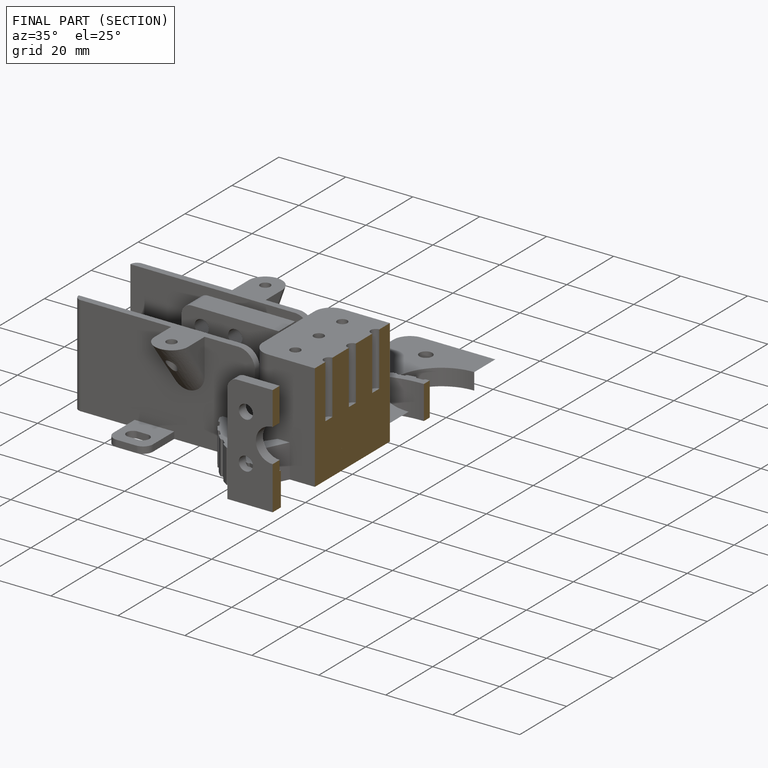
[diagram: finished part — half-section view (interior)]
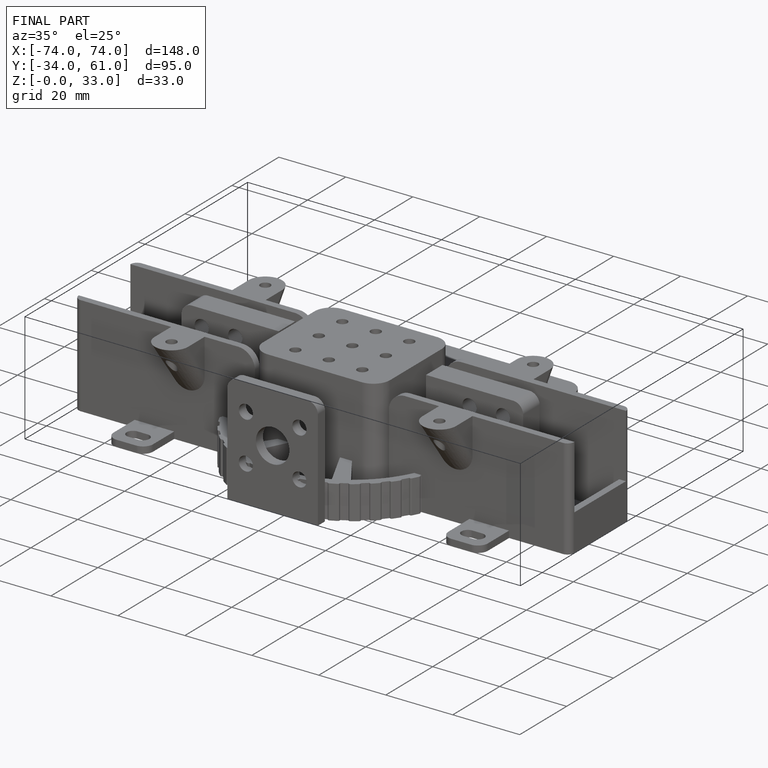
[diagram: finished part — iso view with bounding-box wireframe]
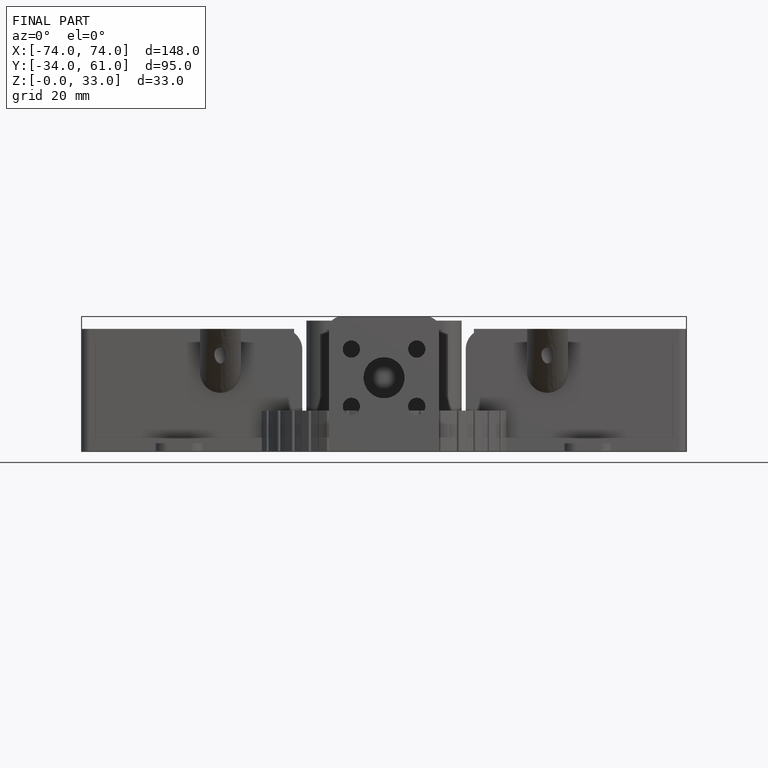
[diagram: finished part — front view with bounding-box wireframe]
